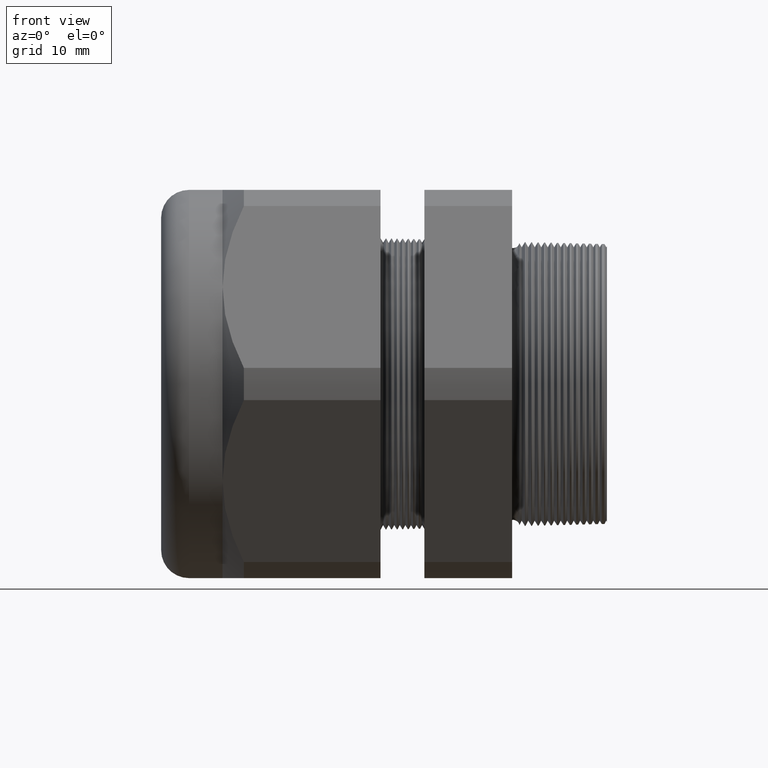
[diagram: clean part render]
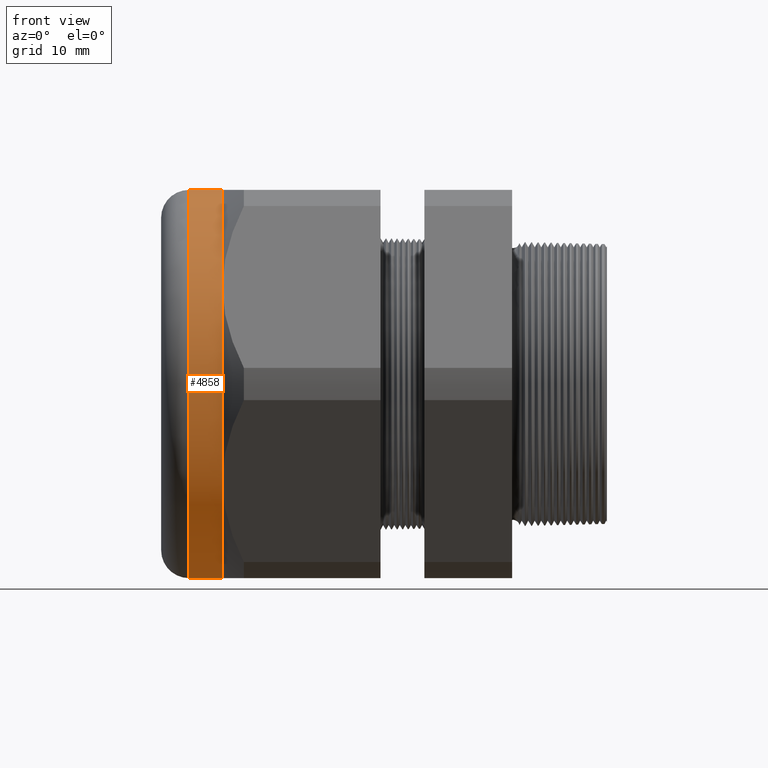
[diagram: same view with one face highlighted and labeled with its STEP entity id]
A machine part, front view. The second image highlights one B-rep face of the part: STEP entity #4858.
In plain terms, the highlighted cylindrical surface (partial cylindrical patch) has radius 26.543 mm, axis along (1, 0, 0).
Its self-contained STEP definition (entity closure, byte-faithful):
#780 = CARTESIAN_POINT ( 'NONE',  ( -1.869292000000000000, -0.9049965469547380800, -0.5225000000000000800 ) ) ;
#1135 = DIRECTION ( 'NONE',  ( 0.0000000000000000000, 0.0000000000000000000, -1.000000000000000000 ) ) ;
#1136 = DIRECTION ( 'NONE',  ( 1.000000000000000000, 0.0000000000000000000, 0.0000000000000000000 ) ) ;
#1137 = CARTESIAN_POINT ( 'NONE',  ( -1.869292000000000000, 0.0000000000000000000, 0.0000000000000000000 ) ) ;
#1138 = AXIS2_PLACEMENT_3D ( 'NONE', #1137, #1136, #1135 ) ;
#1139 = CIRCLE ( 'NONE', #1138, 1.044999999999999700 ) ;
#1176 = DIRECTION ( 'NONE',  ( 0.0000000000000000000, 0.0000000000000000000, 1.000000000000000000 ) ) ;
#1177 = DIRECTION ( 'NONE',  ( 1.000000000000000000, 0.0000000000000000000, 0.0000000000000000000 ) ) ;
#1178 = CARTESIAN_POINT ( 'NONE',  ( -2.049999999999999800, 0.0000000000000000000, 0.0000000000000000000 ) ) ;
#1179 = AXIS2_PLACEMENT_3D ( 'NONE', #1178, #1177, #1176 ) ;
#1180 = CIRCLE ( 'NONE', #1179, 1.044999999999999900 ) ;
#1181 = DIRECTION ( 'NONE',  ( 0.0000000000000000000, 0.0000000000000000000, -1.000000000000000000 ) ) ;
#1182 = DIRECTION ( 'NONE',  ( 1.000000000000000000, 0.0000000000000000000, 0.0000000000000000000 ) ) ;
#1183 = CARTESIAN_POINT ( 'NONE',  ( -1.869292000000000000, 0.0000000000000000000, 0.0000000000000000000 ) ) ;
#1184 = AXIS2_PLACEMENT_3D ( 'NONE', #1183, #1182, #1181 ) ;
#1185 = CIRCLE ( 'NONE', #1184, 1.044999999999999700 ) ;
#1186 = DIRECTION ( 'NONE',  ( 0.0000000000000000000, 0.0000000000000000000, -1.000000000000000000 ) ) ;
#1187 = DIRECTION ( 'NONE',  ( 1.000000000000000000, 0.0000000000000000000, 0.0000000000000000000 ) ) ;
#1188 = CARTESIAN_POINT ( 'NONE',  ( -1.869292000000000000, 0.0000000000000000000, 0.0000000000000000000 ) ) ;
#1189 = AXIS2_PLACEMENT_3D ( 'NONE', #1188, #1187, #1186 ) ;
#1190 = CIRCLE ( 'NONE', #1189, 1.044999999999999700 ) ;
#2055 = CARTESIAN_POINT ( 'NONE',  ( -1.869292000000000000, -0.9049965469547386300, 0.5224999999999996300 ) ) ;
#2116 = CARTESIAN_POINT ( 'NONE',  ( -1.869292000000000000, 0.0000000000000000000, -1.044999999999999900 ) ) ;
#2162 = CARTESIAN_POINT ( 'NONE',  ( -1.869292000000000000, 0.0000000000000000000, 1.044999999999999900 ) ) ;
#2163 = DIRECTION ( 'NONE',  ( 1.000000000000000000, 0.0000000000000000000, 0.0000000000000000000 ) ) ;
#2164 = VECTOR ( 'NONE', #2163, 39.37007874015748100 ) ;
#2165 = CARTESIAN_POINT ( 'NONE',  ( 0.0000000000000000000, 1.279755905108984100E-016, 1.044999999999999900 ) ) ;
#2166 = LINE ( 'NONE', #2165, #2164 ) ;
#2182 = DIRECTION ( 'NONE',  ( 1.000000000000000000, 0.0000000000000000000, 0.0000000000000000000 ) ) ;
#2183 = VECTOR ( 'NONE', #2182, 39.37007874015748100 ) ;
#2184 = CARTESIAN_POINT ( 'NONE',  ( 0.0000000000000000000, 0.0000000000000000000, -1.044999999999999900 ) ) ;
#2185 = LINE ( 'NONE', #2184, #2183 ) ;
#2698 = VERTEX_POINT ( 'NONE', #780 ) ;
#2806 = CARTESIAN_POINT ( 'NONE',  ( -2.049999999999999800, 1.279755905108984100E-016, 1.044999999999999900 ) ) ;
#2812 = CARTESIAN_POINT ( 'NONE',  ( -2.049999999999999800, 0.0000000000000000000, -1.044999999999999900 ) ) ;
#2937 = DIRECTION ( 'NONE',  ( 0.0000000000000000000, 0.0000000000000000000, -1.000000000000000000 ) ) ;
#2938 = DIRECTION ( 'NONE',  ( 1.000000000000000000, 0.0000000000000000000, 0.0000000000000000000 ) ) ;
#2939 = CARTESIAN_POINT ( 'NONE',  ( 0.0000000000000000000, 0.0000000000000000000, 0.0000000000000000000 ) ) ;
#2940 = AXIS2_PLACEMENT_3D ( 'NONE', #2939, #2938, #2937 ) ;
#2942 = CYLINDRICAL_SURFACE ( 'NONE', #2940, 1.044999999999999900 ) ;
#2943 = FACE_OUTER_BOUND ( 'NONE', #4849, .T. ) ;
#3895 = ORIENTED_EDGE ( 'NONE', *, *, #3906, .F. ) ;
#3900 = ORIENTED_EDGE ( 'NONE', *, *, #4464, .F. ) ;
#3906 = EDGE_CURVE ( 'NONE', #4422, #2698, #1139, .T. ) ;
#3908 = ORIENTED_EDGE ( 'NONE', *, *, #3909, .F. ) ;
#3909 = EDGE_CURVE ( 'NONE', #4465, #4422, #1190, .T. ) ;
#3910 = ORIENTED_EDGE ( 'NONE', *, *, #4484, .T. ) ;
#3911 = ORIENTED_EDGE ( 'NONE', *, *, #3912, .F. ) ;
#3912 = EDGE_CURVE ( 'NONE', #2698, #4454, #1185, .T. ) ;
#3913 = EDGE_CURVE ( 'NONE', #4798, #4792, #1180, .T. ) ;
#3914 = ORIENTED_EDGE ( 'NONE', *, *, #3913, .T. ) ;
#4422 = VERTEX_POINT ( 'NONE', #2055 ) ;
#4454 = VERTEX_POINT ( 'NONE', #2116 ) ;
#4464 = EDGE_CURVE ( 'NONE', #4798, #4465, #2166, .T. ) ;
#4465 = VERTEX_POINT ( 'NONE', #2162 ) ;
#4484 = EDGE_CURVE ( 'NONE', #4792, #4454, #2185, .T. ) ;
#4792 = VERTEX_POINT ( 'NONE', #2812 ) ;
#4798 = VERTEX_POINT ( 'NONE', #2806 ) ;
#4849 = EDGE_LOOP ( 'NONE', ( #3900, #3914, #3910, #3911, #3895, #3908 ) ) ;
#4858 = ADVANCED_FACE ( 'NONE', ( #2943 ), #2942, .T. ) ;